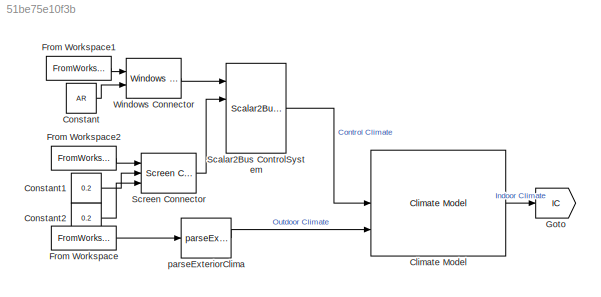
MODEL slx_51be75e10f3b
KIND model
CONFIG AbsTol = auto
CONFIG EnableMultiTasking = off
CONFIG FixedStep = auto
CONFIG MaxStep = auto
CONFIG MinStep = auto
CONFIG RelTol = 1e-3
CONFIG SampleTimeConstraint = Unconstrained
CONFIG SolverName = VariableStepAuto
CONFIG StartTime = 0.0
CONFIG StopTime = 8
WORKSPACE source: mxarray member
WORKSPACE params: climate_p (value not decoded)
BLOCK [Reference] Climate Model  REF=HORTISIM/Climate/Models/Climate Model
  Ports = [3, 1]
  SourceBlock = HORTISIM/Climate/Models/Climate Model
  SourceProductName = Horti Simulator
BLOCK [Constant] Constant
  Value = AR
BLOCK [Constant] Constant1
  Value = 0.2
BLOCK [Constant] Constant2
  Value = 0.2
BLOCK [FromWorkspace] From Workspace
  VariableName = climate
BLOCK [FromWorkspace] From Workspace1
  VariableName = windows
BLOCK [FromWorkspace] From Workspace2
  VariableName = screen
BLOCK [Goto] Goto
  GotoTag = IC
BLOCK [Reference] Scalar2Bus ControlSystem  REF=HORTISIM/Other 
Functions/Scalar2Bus 
Control Climate
  Ports = [4, 1]
  SourceBlock = HORTISIM/Other \nFunctions/Scalar2Bus \nControl Climate
  SourceProductName = Horti Simulator
  SourceType = SubSystem
BLOCK [Reference] Screen Connector  REF=HORTISIM/Other 
Functions/Screen
Connector
  Ports = [3, 1]
  SourceBlock = HORTISIM/Other \nFunctions/Screen\nConnector
  SourceProductName = Horti Simulator
  SourceType = SubSystem
BLOCK [Reference] Windows Connector  REF=HORTISIM/Other 
Functions/Windows
Connector
  Ports = [2, 1]
  SourceBlock = HORTISIM/Other \nFunctions/Windows\nConnector
  SourceProductName = Horti Simulator
  SourceType = SubSystem
BLOCK [Reference] parseExteriorClima  REF=HORTISIM/Other 
Functions/parseExteriorClima
  Ports = [1, 1]
  SourceBlock = HORTISIM/Other \nFunctions/parseExteriorClima
  SourceProductName = Horti Simulator
  SourceType = SubSystem
LINE Climate Model:1 -> Goto:1
LINE Constant1:1 -> Screen Connector:2
LINE Constant2:1 -> Screen Connector:3
LINE Constant:1 -> Windows Connector:2
LINE From Workspace1:1 -> Windows Connector:1
LINE From Workspace2:1 -> Screen Connector:1
LINE From Workspace:1 -> parseExteriorClima:1
LINE Scalar2Bus ControlSystem:1 -> Climate Model:2
LINE Screen Connector:1 -> Scalar2Bus ControlSystem:2
LINE Windows Connector:1 -> Scalar2Bus ControlSystem:1
LINE parseExteriorClima:1 -> Climate Model:3
